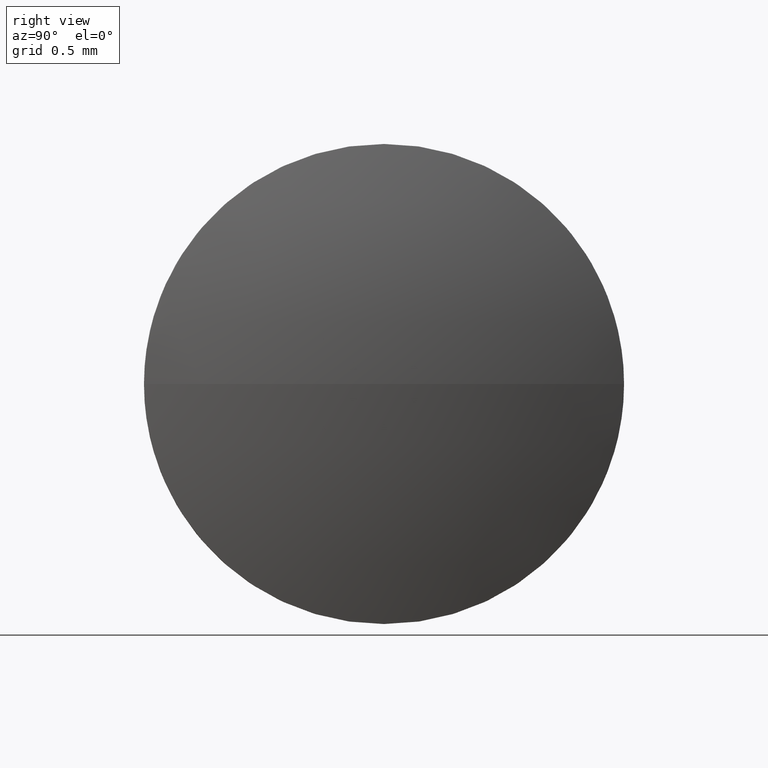
[diagram: clean part render]
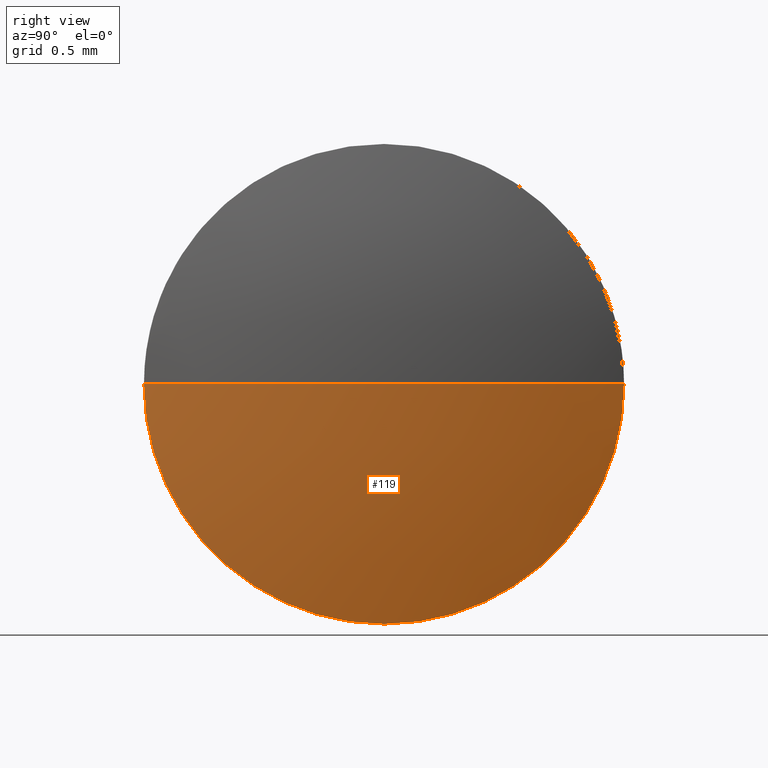
[diagram: same view with one face highlighted and labeled with its STEP entity id]
A machine part, right view. The second image highlights one B-rep face of the part: STEP entity #119.
In plain terms, the highlighted spherical surface has radius 5.2236 mm.
Its self-contained STEP definition (entity closure, byte-faithful):
#3 = ORIENTED_EDGE ( 'NONE', *, *, #98, .T. ) ;
#5 = CARTESIAN_POINT ( 'NONE',  ( 630.1866953188922500, 143.7893486755916400, 0.0000000000000000000 ) ) ;
#8 = CARTESIAN_POINT ( 'NONE',  ( 630.1866953188922500, 143.7893486755916400, 0.0000000000000000000 ) ) ;
#11 = CARTESIAN_POINT ( 'NONE',  ( 635.1903316825286100, 143.7893486755917300, -1.500000000000001300 ) ) ;
#14 = ORIENTED_EDGE ( 'NONE', *, *, #104, .F. ) ;
#17 = CIRCLE ( 'NONE', #111, 5.223636363636319200 ) ;
#25 = DIRECTION ( 'NONE',  ( 0.0000000000000000000, 0.0000000000000000000, 1.000000000000000000 ) ) ;
#28 = EDGE_CURVE ( 'NONE', #40, #77, #17, .T. ) ;
#40 = VERTEX_POINT ( 'NONE', #48 ) ;
#43 = CARTESIAN_POINT ( 'NONE',  ( 635.1903316825286100, 145.2893486755917000, 0.0000000000000000000 ) ) ;
#48 = CARTESIAN_POINT ( 'NONE',  ( 635.4103316825286400, 143.7893486755916400, 0.0000000000000000000 ) ) ;
#51 = DIRECTION ( 'NONE',  ( -0.0000000000000000000, 0.0000000000000000000, -1.000000000000000000 ) ) ;
#62 = DIRECTION ( 'NONE',  ( -0.0000000000000000000, 0.0000000000000000000, 1.000000000000000000 ) ) ;
#63 = AXIS2_PLACEMENT_3D ( 'NONE', #8, #51, #97 ) ;
#64 = CIRCLE ( 'NONE', #118, 5.223636363636346800 ) ;
#77 = VERTEX_POINT ( 'NONE', #43 ) ;
#82 = DIRECTION ( 'NONE',  ( 0.0000000000000000000, 0.0000000000000000000, 1.000000000000000000 ) ) ;
#84 = DIRECTION ( 'NONE',  ( 0.0000000000000000000, 1.000000000000000000, 1.224646799147349800E-016 ) ) ;
#93 = ORIENTED_EDGE ( 'NONE', *, *, #28, .F. ) ;
#96 = DIRECTION ( 'NONE',  ( 0.0000000000000000000, 1.224646799147353200E-016, -1.000000000000000000 ) ) ;
#97 = DIRECTION ( 'NONE',  ( 0.0000000000000000000, 1.000000000000000000, 0.0000000000000000000 ) ) ;
#98 = EDGE_CURVE ( 'NONE', #40, #147, #64, .T. ) ;
#104 = EDGE_CURVE ( 'NONE', #77, #114, #133, .T. ) ;
#107 = CARTESIAN_POINT ( 'NONE',  ( 635.1903316825286100, 143.7893486755917300, 0.0000000000000000000 ) ) ;
#108 = ORIENTED_EDGE ( 'NONE', *, *, #132, .F. ) ;
#111 = AXIS2_PLACEMENT_3D ( 'NONE', #5, #62, #176 ) ;
#114 = VERTEX_POINT ( 'NONE', #11 ) ;
#118 = AXIS2_PLACEMENT_3D ( 'NONE', #181, #96, #84 ) ;
#119 = ADVANCED_FACE ( 'NONE', ( #171 ), #178, .T. ) ;
#121 = AXIS2_PLACEMENT_3D ( 'NONE', #107, #124, #25 ) ;
#124 = DIRECTION ( 'NONE',  ( -1.000000000000000000, -0.0000000000000000000, -0.0000000000000000000 ) ) ;
#126 = CARTESIAN_POINT ( 'NONE',  ( 635.1903316825286100, 142.2893486755916700, -1.836970198720990200E-016 ) ) ;
#132 = EDGE_CURVE ( 'NONE', #114, #147, #141, .T. ) ;
#133 = CIRCLE ( 'NONE', #150, 1.500000000000001300 ) ;
#141 = CIRCLE ( 'NONE', #121, 1.500000000000001300 ) ;
#147 = VERTEX_POINT ( 'NONE', #126 ) ;
#150 = AXIS2_PLACEMENT_3D ( 'NONE', #180, #179, #82 ) ;
#165 = EDGE_LOOP ( 'NONE', ( #93, #3, #108, #14 ) ) ;
#171 = FACE_OUTER_BOUND ( 'NONE', #165, .T. ) ;
#176 = DIRECTION ( 'NONE',  ( 1.000000000000000000, 0.0000000000000000000, 0.0000000000000000000 ) ) ;
#178 = SPHERICAL_SURFACE ( 'NONE', #63, 5.223636363636333400 ) ;
#179 = DIRECTION ( 'NONE',  ( -1.000000000000000000, -0.0000000000000000000, -0.0000000000000000000 ) ) ;
#180 = CARTESIAN_POINT ( 'NONE',  ( 635.1903316825286100, 143.7893486755917300, 0.0000000000000000000 ) ) ;
#181 = CARTESIAN_POINT ( 'NONE',  ( 630.1866953188922500, 143.7893486755916400, 0.0000000000000000000 ) ) ;